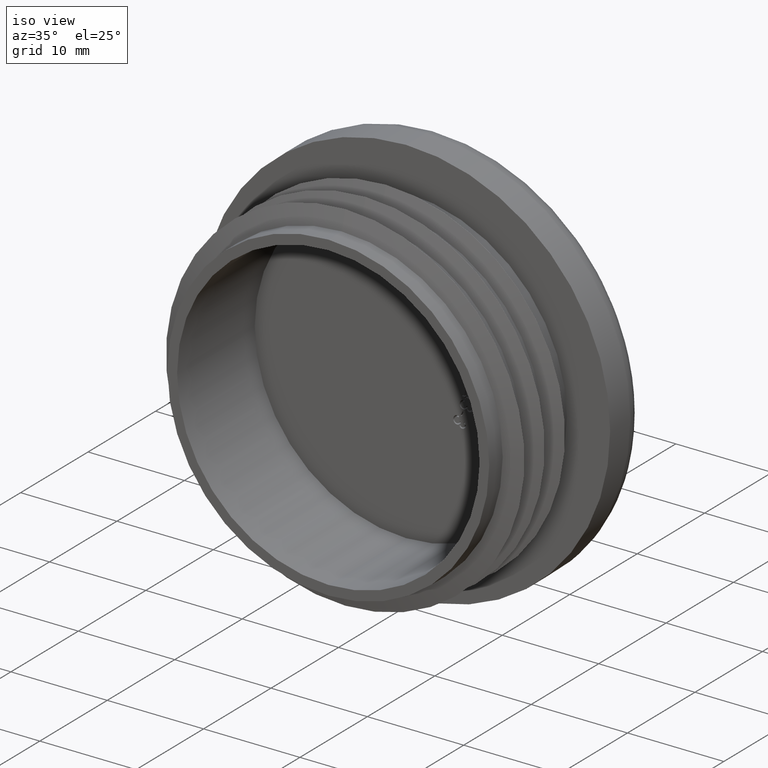
[diagram: clean part render]
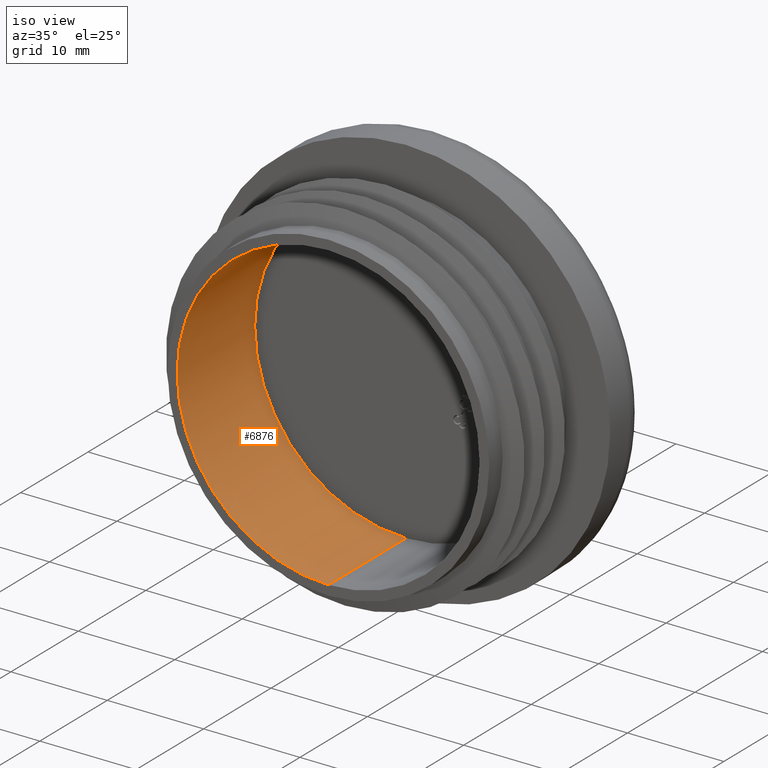
[diagram: same view with one face highlighted and labeled with its STEP entity id]
A machine part, iso view. The second image highlights one B-rep face of the part: STEP entity #6876.
In plain terms, the highlighted cylindrical surface (partial cylindrical patch) has radius 15.7 mm, axis along (-0, 1, -0).
Its self-contained STEP definition (entity closure, byte-faithful):
#231 = EDGE_LOOP ( 'NONE', ( #4525, #8159, #8057, #7822 ) ) ;
#512 = DIRECTION ( 'NONE',  ( 0.0000000000000000000, 0.0000000000000000000, 1.000000000000000000 ) ) ;
#992 = LINE ( 'NONE', #2826, #3267 ) ;
#1263 = FACE_OUTER_BOUND ( 'NONE', #231, .T. ) ;
#1288 = EDGE_CURVE ( 'NONE', #6804, #9982, #10421, .T. ) ;
#1663 = DIRECTION ( 'NONE',  ( 0.0000000000000000000, 0.0000000000000000000, 1.000000000000000000 ) ) ;
#2493 = VERTEX_POINT ( 'NONE', #4173 ) ;
#2826 = CARTESIAN_POINT ( 'NONE',  ( 0.0000000000000000000, -11.50000000000000000, 15.69999999999999900 ) ) ;
#3267 = VECTOR ( 'NONE', #10035, 1000.000000000000000 ) ;
#4173 = CARTESIAN_POINT ( 'NONE',  ( 1.922695474661344300E-015, 0.0000000000000000000, -15.69999999999999900 ) ) ;
#4259 = AXIS2_PLACEMENT_3D ( 'NONE', #10211, #5563, #512 ) ;
#4525 = ORIENTED_EDGE ( 'NONE', *, *, #1288, .T. ) ;
#4745 = EDGE_CURVE ( 'NONE', #9982, #2493, #5315, .T. ) ;
#4748 = CARTESIAN_POINT ( 'NONE',  ( 0.0000000000000000000, -11.50000000000000000, 0.0000000000000000000 ) ) ;
#5315 = LINE ( 'NONE', #7208, #9486 ) ;
#5563 = DIRECTION ( 'NONE',  ( -0.0000000000000000000, -1.000000000000000000, -0.0000000000000000000 ) ) ;
#6070 = EDGE_CURVE ( 'NONE', #6804, #7878, #992, .T. ) ;
#6427 = CARTESIAN_POINT ( 'NONE',  ( 0.0000000000000000000, 0.0000000000000000000, 15.69999999999999900 ) ) ;
#6748 = AXIS2_PLACEMENT_3D ( 'NONE', #4748, #9475, #1663 ) ;
#6804 = VERTEX_POINT ( 'NONE', #8568 ) ;
#6876 = ADVANCED_FACE ( 'NONE', ( #1263 ), #7607, .F. ) ;
#7208 = CARTESIAN_POINT ( 'NONE',  ( 1.922695474661344300E-015, -11.50000000000000000, -15.69999999999999900 ) ) ;
#7607 = CYLINDRICAL_SURFACE ( 'NONE', #6748, 15.69999999999999900 ) ;
#7779 = CIRCLE ( 'NONE', #4259, 15.69999999999999900 ) ;
#7822 = ORIENTED_EDGE ( 'NONE', *, *, #6070, .F. ) ;
#7878 = VERTEX_POINT ( 'NONE', #6427 ) ;
#7967 = DIRECTION ( 'NONE',  ( -0.0000000000000000000, 1.000000000000000000, -0.0000000000000000000 ) ) ;
#8057 = ORIENTED_EDGE ( 'NONE', *, *, #9023, .F. ) ;
#8159 = ORIENTED_EDGE ( 'NONE', *, *, #4745, .T. ) ;
#8163 = DIRECTION ( 'NONE',  ( 0.0000000000000000000, 0.0000000000000000000, -1.000000000000000000 ) ) ;
#8179 = DIRECTION ( 'NONE',  ( 0.0000000000000000000, -1.000000000000000000, 0.0000000000000000000 ) ) ;
#8196 = CARTESIAN_POINT ( 'NONE',  ( 0.0000000000000000000, -11.50000000000000000, 0.0000000000000000000 ) ) ;
#8568 = CARTESIAN_POINT ( 'NONE',  ( 0.0000000000000000000, -11.50000000000000000, 15.69999999999999900 ) ) ;
#9023 = EDGE_CURVE ( 'NONE', #7878, #2493, #7779, .T. ) ;
#9097 = AXIS2_PLACEMENT_3D ( 'NONE', #8196, #8179, #8163 ) ;
#9475 = DIRECTION ( 'NONE',  ( -0.0000000000000000000, 1.000000000000000000, -0.0000000000000000000 ) ) ;
#9486 = VECTOR ( 'NONE', #7967, 1000.000000000000000 ) ;
#9646 = CARTESIAN_POINT ( 'NONE',  ( 1.922695474661344300E-015, -11.50000000000000000, -15.69999999999999900 ) ) ;
#9982 = VERTEX_POINT ( 'NONE', #9646 ) ;
#10035 = DIRECTION ( 'NONE',  ( -0.0000000000000000000, 1.000000000000000000, -0.0000000000000000000 ) ) ;
#10211 = CARTESIAN_POINT ( 'NONE',  ( 0.0000000000000000000, 0.0000000000000000000, 0.0000000000000000000 ) ) ;
#10421 = CIRCLE ( 'NONE', #9097, 15.69999999999999900 ) ;